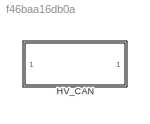
MODEL slx_f46baa16db0a
KIND library
CONFIG AbsTol = auto
CONFIG EnableMultiTasking = off
CONFIG FixedStep = auto
CONFIG MaxStep = auto
CONFIG MinStep = auto
CONFIG RelTol = 1e-3
CONFIG SampleTimeConstraint = Unconstrained
CONFIG Solver = VariableStepAuto
CONFIG SolverName = VariableStepAuto
CONFIG StartTime = 0.0
CONFIG StopTime = 10.0
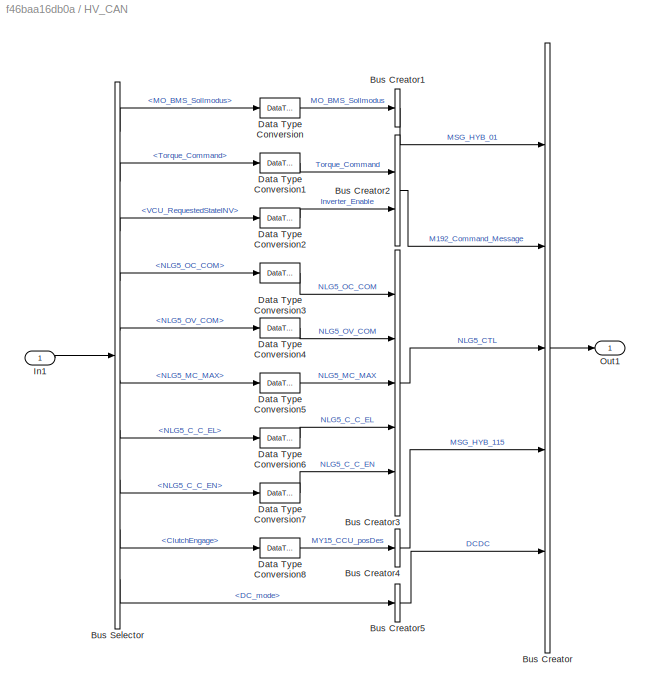
BLOCK [SubSystem] HV_CAN
  Ports = [1, 1]
  RequestExecContextInheritance = off
  Variant = off
BLOCK [BusCreator] HV_CAN/Bus Creator
  DisplayOption = bar
  InheritFromInputs = on
  Inputs = 5
  Ports = [5, 1]
BLOCK [BusCreator] HV_CAN/Bus Creator1
  DisplayOption = bar
  InheritFromInputs = on
  Inputs = 1
  Ports = [1, 1]
BLOCK [BusCreator] HV_CAN/Bus Creator2
  DisplayOption = bar
  InheritFromInputs = on
  Inputs = 2
  Ports = [2, 1]
BLOCK [BusCreator] HV_CAN/Bus Creator3
  DisplayOption = bar
  InheritFromInputs = on
  Inputs = 5
  Ports = [5, 1]
BLOCK [BusCreator] HV_CAN/Bus Creator4
  DisplayOption = bar
  InheritFromInputs = on
  Inputs = 1
  Ports = [1, 1]
BLOCK [BusCreator] HV_CAN/Bus Creator5
  DisplayOption = bar
  InheritFromInputs = on
  Inputs = 1
  Ports = [1, 1]
BLOCK [BusSelector] HV_CAN/Bus Selector
  OutputAsBus = off
  OutputSignals = BMS_CAN.MSG_HYB_01.MO_BMS_Sollmodus,Controls.Torque_Command,MCU_CAN.MCU_CAN.VCU_RequestedStateINV,OBC_CAN.NLG5_OC_COM,OBC_CAN.NLG5_OV_COM,OBC_CAN.NLG5_MC_MAX,OBC_CAN.NLG5_C_C_EL,OBC_CAN.NLG5_C_C_EN,Controls.ClutchEngage,MCU_CAN.DCDC_Out.DC_mode
  Ports = [1, 10]
BLOCK [DataTypeConversion] HV_CAN/Data Type Conversion
  RndMeth = Floor
  SaturateOnIntegerOverflow = off
BLOCK [DataTypeConversion] HV_CAN/Data Type Conversion1
  RndMeth = Floor
  SaturateOnIntegerOverflow = off
BLOCK [DataTypeConversion] HV_CAN/Data Type Conversion2
  RndMeth = Floor
  SaturateOnIntegerOverflow = off
BLOCK [DataTypeConversion] HV_CAN/Data Type Conversion3
  RndMeth = Floor
  SaturateOnIntegerOverflow = off
BLOCK [DataTypeConversion] HV_CAN/Data Type Conversion4
  RndMeth = Floor
  SaturateOnIntegerOverflow = off
BLOCK [DataTypeConversion] HV_CAN/Data Type Conversion5
  RndMeth = Floor
  SaturateOnIntegerOverflow = off
BLOCK [DataTypeConversion] HV_CAN/Data Type Conversion6
  RndMeth = Floor
  SaturateOnIntegerOverflow = off
BLOCK [DataTypeConversion] HV_CAN/Data Type Conversion7
  RndMeth = Floor
  SaturateOnIntegerOverflow = off
BLOCK [DataTypeConversion] HV_CAN/Data Type Conversion8
  RndMeth = Floor
  SaturateOnIntegerOverflow = off
BLOCK [Inport] HV_CAN/In1
  IconDisplay = Port number
BLOCK [Outport] HV_CAN/Out1
  IconDisplay = Port number
LINE HV_CAN/Bus Creator1:1 -> HV_CAN/Bus Creator:1
LINE HV_CAN/Bus Creator2:1 -> HV_CAN/Bus Creator:2
LINE HV_CAN/Bus Creator3:1 -> HV_CAN/Bus Creator:3
LINE HV_CAN/Bus Creator4:1 -> HV_CAN/Bus Creator:4
LINE HV_CAN/Bus Creator5:1 -> HV_CAN/Bus Creator:5
LINE HV_CAN/Bus Creator:1 -> HV_CAN/Out1:1
LINE HV_CAN/Bus Selector:1 -> HV_CAN/Data Type Conversion:1
LINE HV_CAN/Bus Selector:10 -> HV_CAN/Bus Creator5:1
LINE HV_CAN/Bus Selector:2 -> HV_CAN/Data Type Conversion1:1
LINE HV_CAN/Bus Selector:3 -> HV_CAN/Data Type Conversion2:1
LINE HV_CAN/Bus Selector:4 -> HV_CAN/Data Type Conversion3:1
LINE HV_CAN/Bus Selector:5 -> HV_CAN/Data Type Conversion4:1
LINE HV_CAN/Bus Selector:6 -> HV_CAN/Data Type Conversion5:1
LINE HV_CAN/Bus Selector:7 -> HV_CAN/Data Type Conversion6:1
LINE HV_CAN/Bus Selector:8 -> HV_CAN/Data Type Conversion7:1
LINE HV_CAN/Bus Selector:9 -> HV_CAN/Data Type Conversion8:1
LINE HV_CAN/Data Type Conversion1:1 -> HV_CAN/Bus Creator2:1
LINE HV_CAN/Data Type Conversion2:1 -> HV_CAN/Bus Creator2:2
LINE HV_CAN/Data Type Conversion3:1 -> HV_CAN/Bus Creator3:1
LINE HV_CAN/Data Type Conversion4:1 -> HV_CAN/Bus Creator3:2
LINE HV_CAN/Data Type Conversion5:1 -> HV_CAN/Bus Creator3:3
LINE HV_CAN/Data Type Conversion6:1 -> HV_CAN/Bus Creator3:4
LINE HV_CAN/Data Type Conversion7:1 -> HV_CAN/Bus Creator3:5
LINE HV_CAN/Data Type Conversion8:1 -> HV_CAN/Bus Creator4:1
LINE HV_CAN/Data Type Conversion:1 -> HV_CAN/Bus Creator1:1
LINE HV_CAN/In1:1 -> HV_CAN/Bus Selector:1
